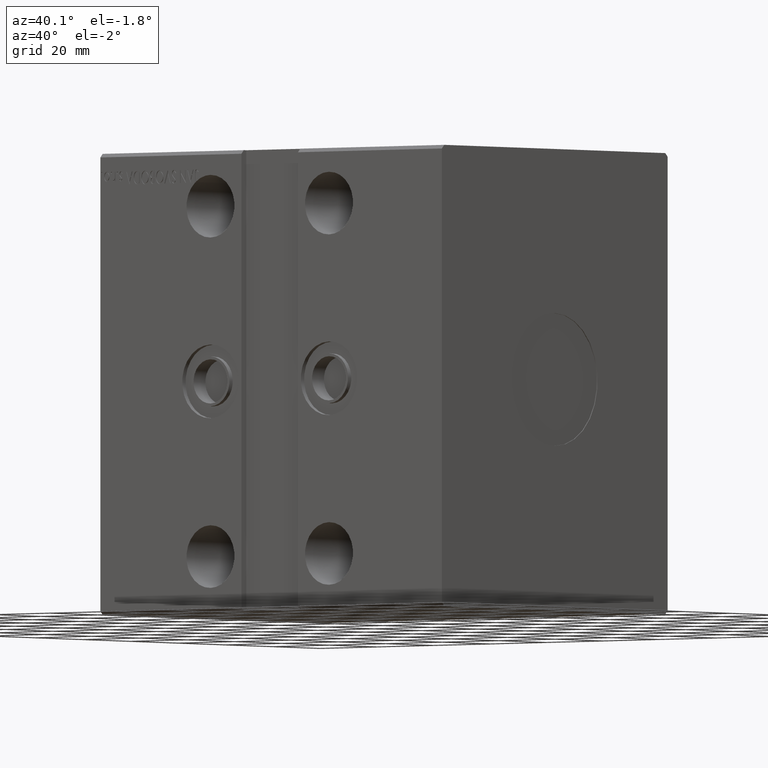
[diagram: clean part render]
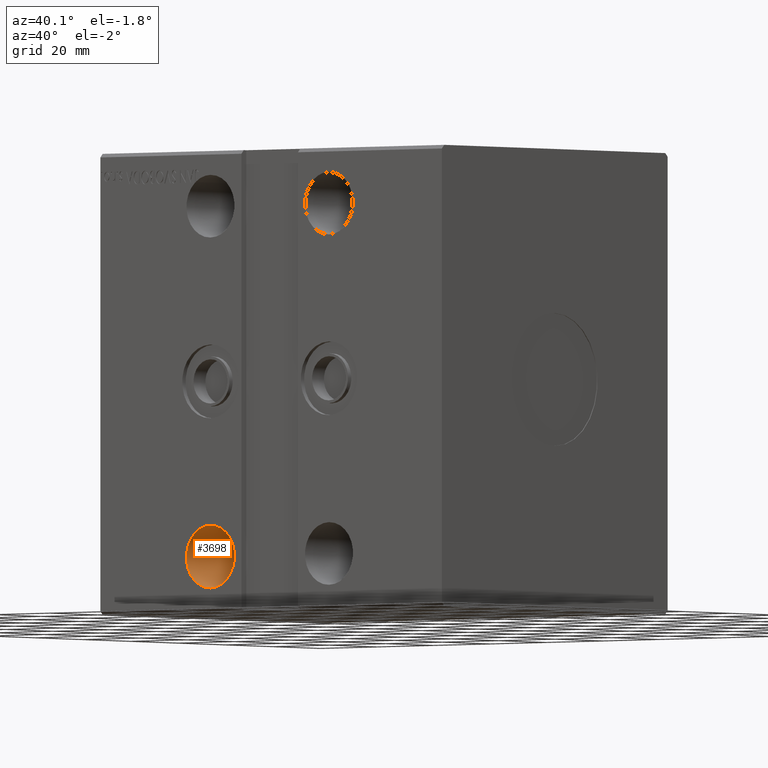
[diagram: same view with one face highlighted and labeled with its STEP entity id]
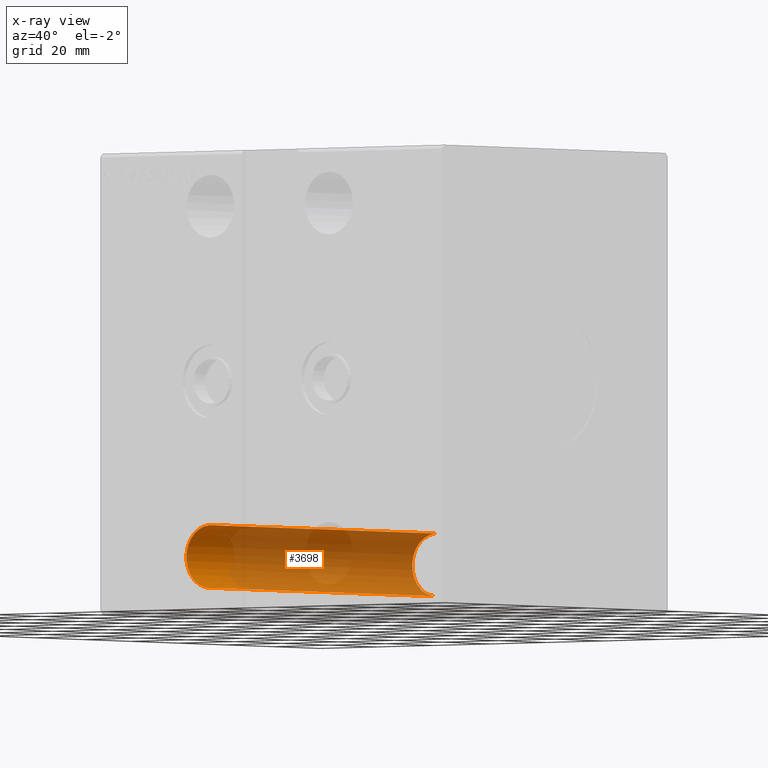
[diagram: x-ray of the same camera — body ghosted, the highlighted face saturated]
A machine part, auxiliary view. The second image highlights one B-rep face of the part: STEP entity #3698.
The next image is the same camera in x-ray: the body ghosted, the highlighted face saturated — about 81% of this face is hidden behind the body in this view.
In plain terms, the highlighted cylindrical surface (edge-blend (fillet) strip) has radius 8.5 mm, axis along (-0, -1, -0).
Its self-contained STEP definition (entity closure, byte-faithful):
#800 = AXIS2_PLACEMENT_3D ( 'NONE', #14487, #31232, #24665 ) ;
#1015 = DIRECTION ( 'NONE',  ( -0.000000000000000000, 1.000000000000000000, 5.507058653894625853E-17 ) ) ;
#1222 = CARTESIAN_POINT ( 'NONE',  ( 39.00000000000000000, 47.50000000000003553, -47.50000000000000711 ) ) ;
#1675 = VERTEX_POINT ( 'NONE', #4481 ) ;
#1781 = AXIS2_PLACEMENT_3D ( 'NONE', #1222, #1015, #23946 ) ;
#1865 = LINE ( 'NONE', #37953, #15535 ) ;
#3698 = ADVANCED_FACE ( 'NONE', ( #12358 ), #6196, .F. ) ;
#4481 = CARTESIAN_POINT ( 'NONE',  ( 33.83333333333333570, 47.50000000000003553, -54.24948557710554553 ) ) ;
#4921 = AXIS2_PLACEMENT_3D ( 'NONE', #15837, #28802, #38146 ) ;
#5107 = EDGE_CURVE ( 'NONE', #31131, #16799, #1865, .T. ) ;
#5154 = CARTESIAN_POINT ( 'NONE',  ( 39.00000000000000000, 47.50000000000003553, -56.00000000000000711 ) ) ;
#6196 = CYLINDRICAL_SURFACE ( 'NONE', #39236, 8.500000000000000000 ) ;
#6489 = VERTEX_POINT ( 'NONE', #12852 ) ;
#6932 = CIRCLE ( 'NONE', #800, 8.500000000000003553 ) ;
#10300 = VECTOR ( 'NONE', #41514, 1000.000000000000000 ) ;
#11035 = ORIENTED_EDGE ( 'NONE', *, *, #16892, .F. ) ;
#12077 = VERTEX_POINT ( 'NONE', #39332 ) ;
#12358 = FACE_OUTER_BOUND ( 'NONE', #16657, .T. ) ;
#12483 = DIRECTION ( 'NONE',  ( -0.000000000000000000, -1.000000000000000000, -5.507058653894625853E-17 ) ) ;
#12852 = CARTESIAN_POINT ( 'NONE',  ( 33.56410256410256920, 47.50000000000003553, -54.03460167618531074 ) ) ;
#12957 = ORIENTED_EDGE ( 'NONE', *, *, #26391, .F. ) ;
#13378 = ORIENTED_EDGE ( 'NONE', *, *, #15525, .T. ) ;
#14200 = LINE ( 'NONE', #26517, #32051 ) ;
#14405 = CIRCLE ( 'NONE', #4921, 8.500000000000000000 ) ;
#14487 = CARTESIAN_POINT ( 'NONE',  ( 39.00000000000000000, 47.29999999999083826, -47.50000000000000711 ) ) ;
#15394 = ORIENTED_EDGE ( 'NONE', *, *, #40481, .F. ) ;
#15439 = DIRECTION ( 'NONE',  ( -0.000000000000000000, -1.000000000000000000, -5.507058653894625853E-17 ) ) ;
#15525 = EDGE_CURVE ( 'NONE', #21773, #1675, #14405, .T. ) ;
#15535 = VECTOR ( 'NONE', #15439, 1000.000000000000000 ) ;
#15837 = CARTESIAN_POINT ( 'NONE',  ( 39.00000000000000000, 47.50000000000003553, -47.50000000000000711 ) ) ;
#16657 = EDGE_LOOP ( 'NONE', ( #21884, #27453, #41437, #11035, #13378, #12957, #18192, #15394 ) ) ;
#16799 = VERTEX_POINT ( 'NONE', #30534 ) ;
#16843 = VERTEX_POINT ( 'NONE', #36491 ) ;
#16892 = EDGE_CURVE ( 'NONE', #21773, #16843, #14200, .T. ) ;
#17146 = AXIS2_PLACEMENT_3D ( 'NONE', #37088, #36670, #39655 ) ;
#18192 = ORIENTED_EDGE ( 'NONE', *, *, #28109, .F. ) ;
#18246 = VECTOR ( 'NONE', #12483, 1000.000000000000000 ) ;
#18711 = DIRECTION ( 'NONE',  ( 0.000000000000000000, 0.000000000000000000, -1.000000000000000000 ) ) ;
#21773 = VERTEX_POINT ( 'NONE', #5154 ) ;
#21884 = ORIENTED_EDGE ( 'NONE', *, *, #25366, .T. ) ;
#22104 = CARTESIAN_POINT ( 'NONE',  ( 39.00000000000000000, 47.50000000000003553, -47.50000000000000711 ) ) ;
#23331 = DIRECTION ( 'NONE',  ( -0.000000000000000000, -1.000000000000000000, -5.507058653894625853E-17 ) ) ;
#23946 = DIRECTION ( 'NONE',  ( 0.000000000000000000, 0.000000000000000000, 1.000000000000000000 ) ) ;
#24665 = DIRECTION ( 'NONE',  ( -1.000000000000000000, 1.711865943116876783E-12, -9.796085511398435237E-15 ) ) ;
#25366 = EDGE_CURVE ( 'NONE', #6489, #31131, #32974, .T. ) ;
#25761 = CARTESIAN_POINT ( 'NONE',  ( 39.00000000000000000, 47.50000000000003553, -39.00000000000000711 ) ) ;
#26391 = EDGE_CURVE ( 'NONE', #40098, #1675, #31098, .T. ) ;
#26517 = CARTESIAN_POINT ( 'NONE',  ( 39.00000000000000000, 47.50000000000003553, -56.00000000000000711 ) ) ;
#27453 = ORIENTED_EDGE ( 'NONE', *, *, #5107, .T. ) ;
#28109 = EDGE_CURVE ( 'NONE', #12077, #40098, #6932, .T. ) ;
#28603 = LINE ( 'NONE', #41580, #18246 ) ;
#28802 = DIRECTION ( 'NONE',  ( -0.000000000000000000, 1.000000000000000000, 5.507058653894625853E-17 ) ) ;
#29949 = EDGE_CURVE ( 'NONE', #16799, #16843, #34128, .T. ) ;
#30534 = CARTESIAN_POINT ( 'NONE',  ( 39.00000000000000000, -47.50000000000000711, -39.00000000000000711 ) ) ;
#31098 = LINE ( 'NONE', #31720, #10300 ) ;
#31131 = VERTEX_POINT ( 'NONE', #25761 ) ;
#31232 = DIRECTION ( 'NONE',  ( -1.711874210006961910E-12, -1.000000000000000000, 8.106832115813578724E-16 ) ) ;
#31720 = CARTESIAN_POINT ( 'NONE',  ( 33.83333333333333570, 47.50000000000003553, -54.24948557710554553 ) ) ;
#32051 = VECTOR ( 'NONE', #23331, 1000.000000000000000 ) ;
#32974 = CIRCLE ( 'NONE', #1781, 8.500000000000000000 ) ;
#34128 = CIRCLE ( 'NONE', #17146, 8.500000000000007105 ) ;
#34871 = DIRECTION ( 'NONE',  ( -0.000000000000000000, -1.000000000000000000, -5.507058653894625853E-17 ) ) ;
#36491 = CARTESIAN_POINT ( 'NONE',  ( 39.00000000000000000, -47.50000000000000711, -56.00000000000002132 ) ) ;
#36670 = DIRECTION ( 'NONE',  ( 0.000000000000000000, -1.000000000000000000, -1.692413147294446216E-16 ) ) ;
#37088 = CARTESIAN_POINT ( 'NONE',  ( 39.00000000000000000, -47.50000000000000711, -47.50000000000001421 ) ) ;
#37953 = CARTESIAN_POINT ( 'NONE',  ( 39.00000000000000000, 47.50000000000003553, -39.00000000000000711 ) ) ;
#38146 = DIRECTION ( 'NONE',  ( 0.000000000000000000, 0.000000000000000000, 1.000000000000000000 ) ) ;
#39236 = AXIS2_PLACEMENT_3D ( 'NONE', #22104, #34871, #18711 ) ;
#39270 = CARTESIAN_POINT ( 'NONE',  ( 33.83333333333333570, 47.29999999999968452, -54.24948557710554553 ) ) ;
#39332 = CARTESIAN_POINT ( 'NONE',  ( 33.56410256410256920, 47.30000000000013927, -54.03460167618531074 ) ) ;
#39655 = DIRECTION ( 'NONE',  ( 0.000000000000000000, 0.000000000000000000, 1.000000000000000000 ) ) ;
#40098 = VERTEX_POINT ( 'NONE', #39270 ) ;
#40481 = EDGE_CURVE ( 'NONE', #6489, #12077, #28603, .T. ) ;
#41437 = ORIENTED_EDGE ( 'NONE', *, *, #29949, .T. ) ;
#41514 = DIRECTION ( 'NONE',  ( 0.000000000000000000, 1.000000000000000000, 5.507058653894625853E-17 ) ) ;
#41580 = CARTESIAN_POINT ( 'NONE',  ( 33.56410256410256920, 47.50000000000003553, -54.03460167618531074 ) ) ;